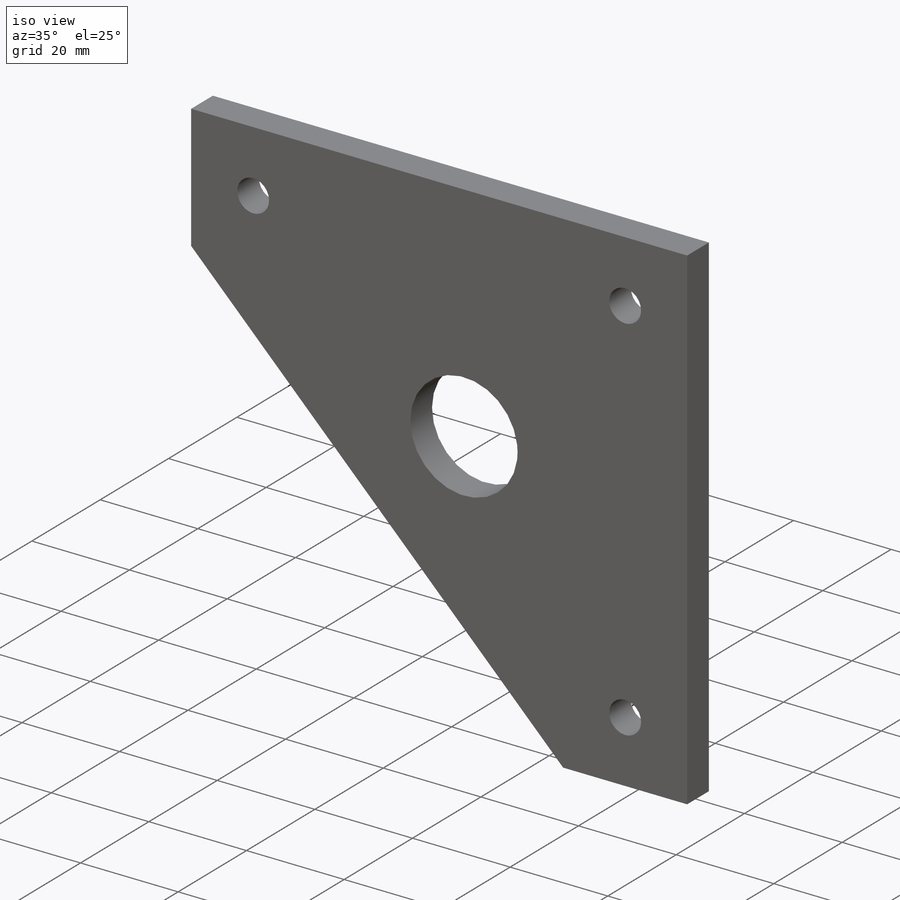
[diagram: iso view]
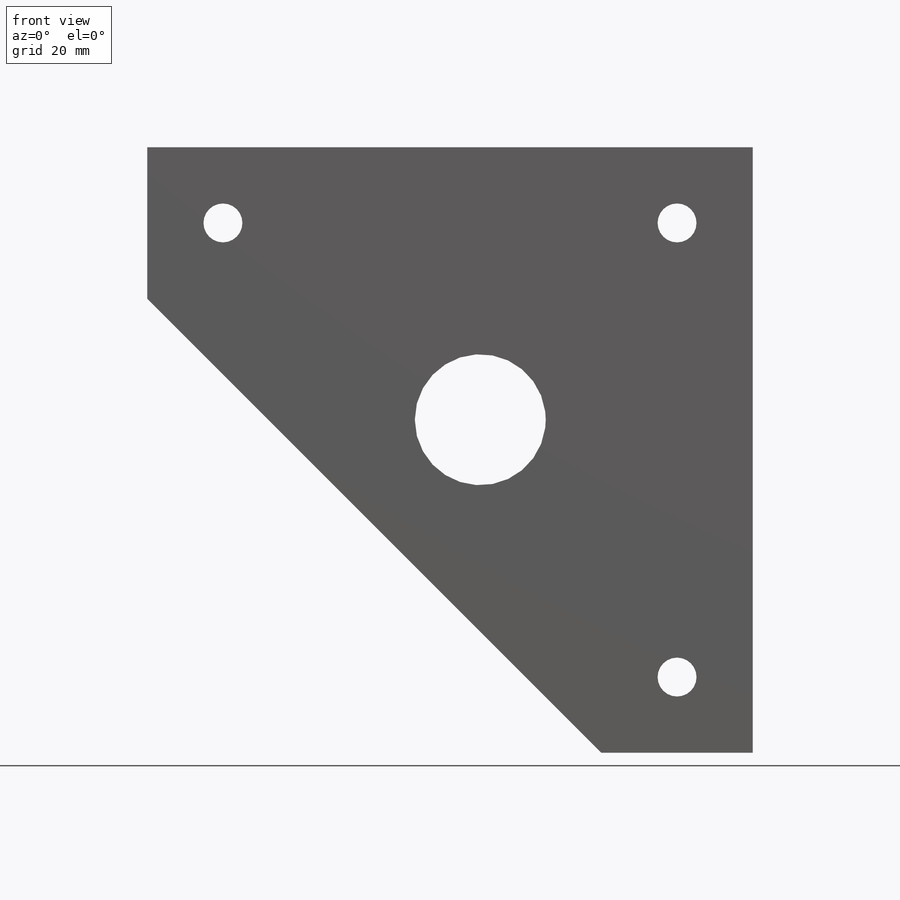
[diagram: front view]
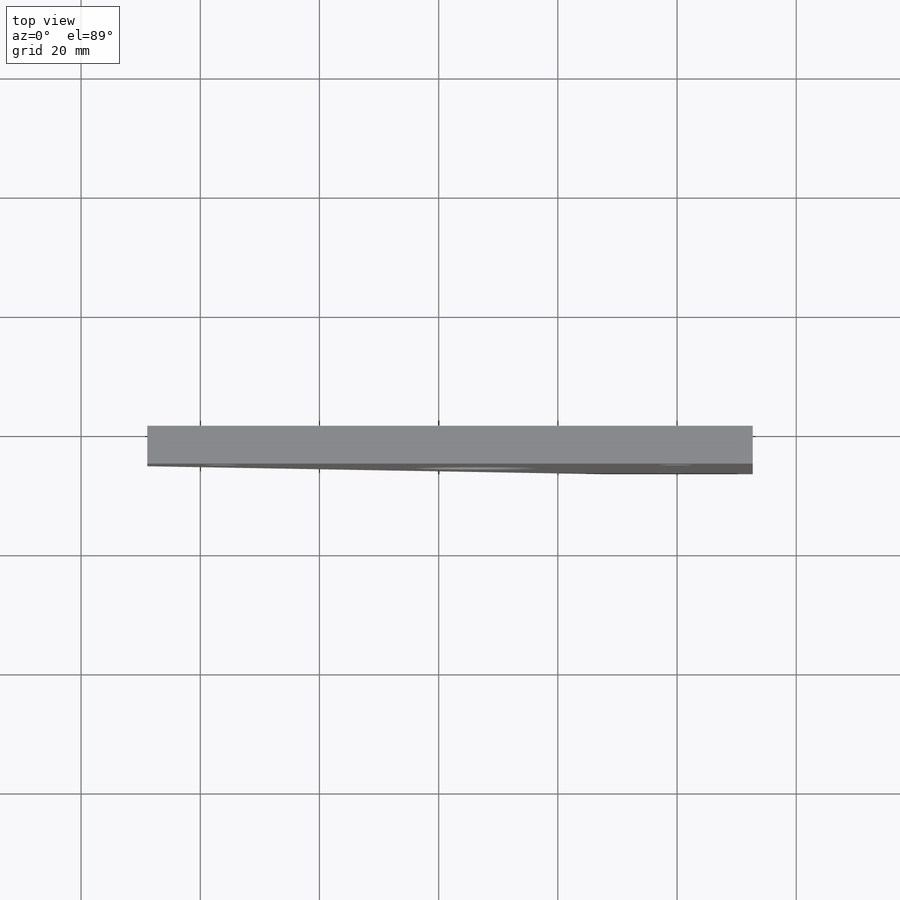
[diagram: top view]
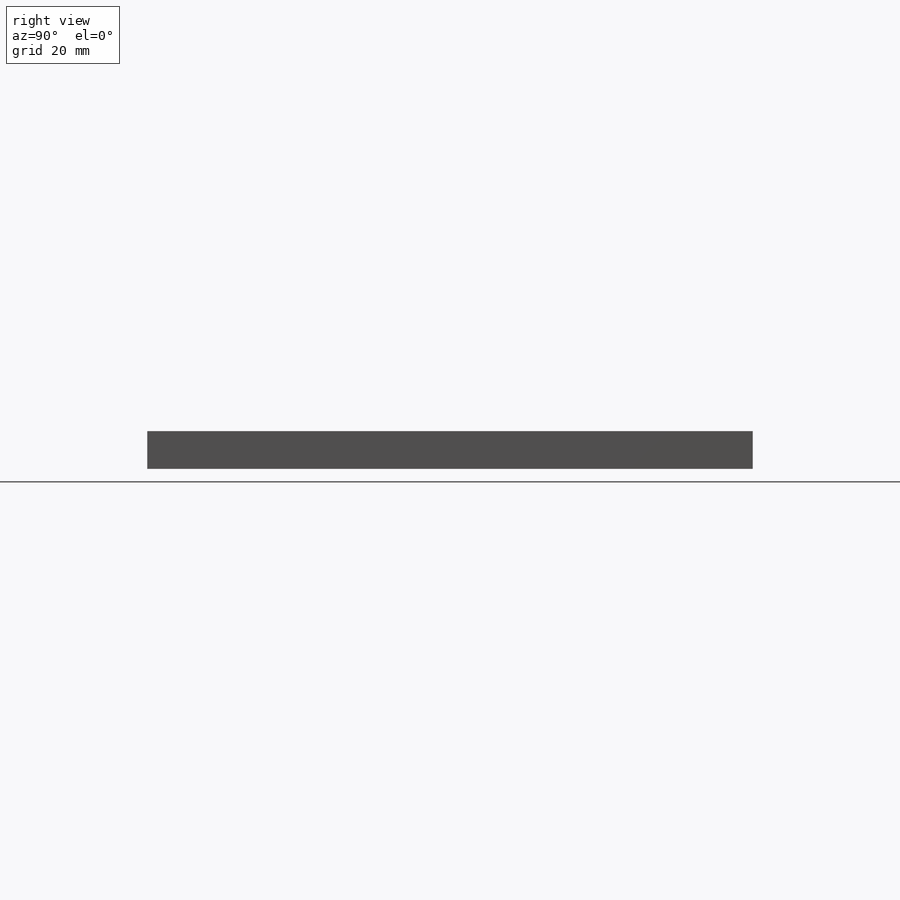
[diagram: right view]
SOLIDWORKS PART (.sldprt)
format: sldprt  version: not decoded by parser v0  size: 182,784 bytes
history: native  units: mm
features: sketch x3, material x1, extrude x1, hole x1 (+12 scaffold rows collapsed)
feature tree (18):
  scaffold x12  (default folders/planes/origin — collapsed)
  material  "Material <not specified>"
  sketch  "Sketch1"  dims[c1.D3=21.971mm c1.D1=12.7mm c1.D2=12.7mm c2.D3=~80.080532mm c2.D4=~42.45734mm c2.D5=~45.869091mm c3.D4=34.29mm c3.D5=34.29mm c3.D6=101.6mm c3.D7=101.6mm c3.D8=3.175mm c3.D9=3.175mm c3.D10=34.29mm]
  extrude  "Boss-Extrude1"  Depth=6.35mm
  hole  "1/4 Clearance Hole1"  Diameter=6.5278mm Depth=6.35mm
  sketch  "Sketch3"  dims[D1=76.2mm D2=76.2mm]
  sketch  "Sketch2"  dims[hole-wizard template sketch: 61 standard entries collapsed; hole parameters above]
decode coverage: 5 of 5 modeling features carry decoded parameters
note: ~ marks probable driven/reference dimensions
note: suppression state not decoded; provenance and decode notes live in map.json
